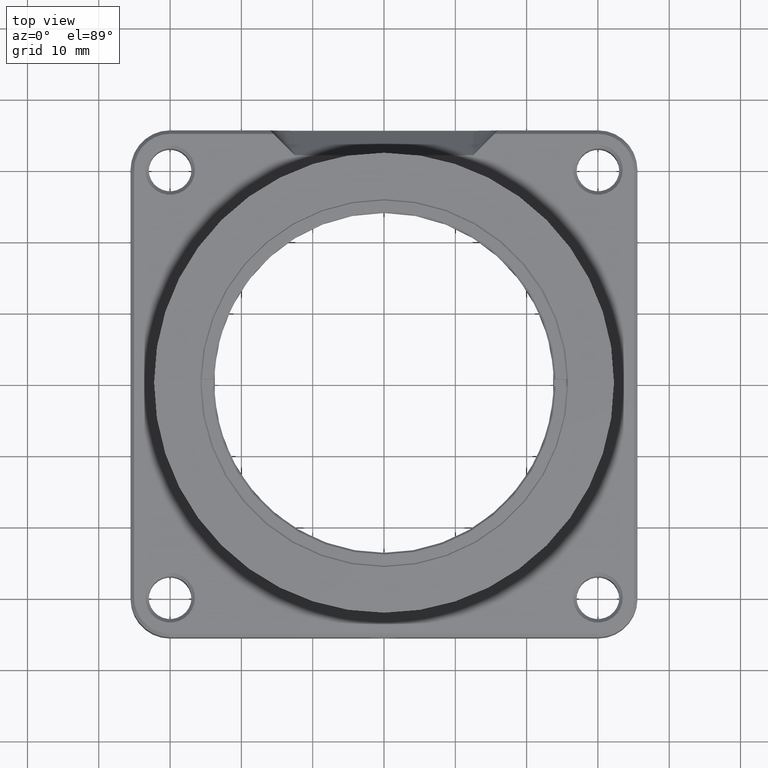
[diagram: clean part render]
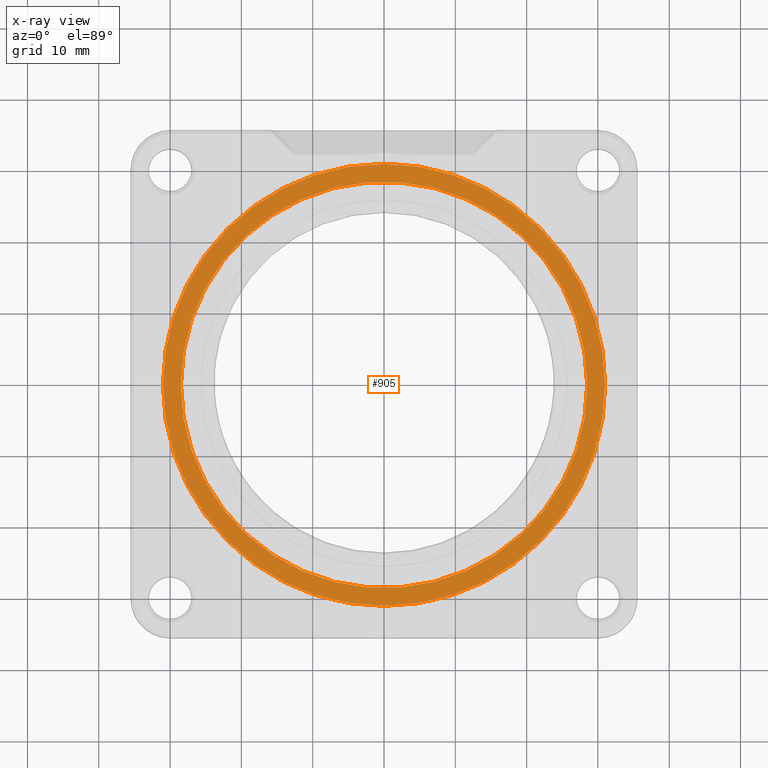
[diagram: x-ray — body ghosted, one internal face saturated and labeled with its STEP entity id]
A machine part, top view, then the same camera in x-ray: the body is ghosted and one INTERNAL B-rep face — a face not visible from any outside direction — is saturated and labeled: STEP entity #905.
In plain terms, the highlighted planar face has unit normal (0, 0, -1).
Its self-contained STEP definition (entity closure, byte-faithful):
#72 = EDGE_CURVE ( 'NONE', #10645, #6431, #878, .T. ) ;
#236 = DIRECTION ( 'NONE',  ( -0.000000000000000000, -0.000000000000000000, 1.000000000000000000 ) ) ;
#441 = PLANE ( 'NONE',  #8760 ) ;
#878 = CIRCLE ( 'NONE', #1752, 28.50000000000000000 ) ;
#905 = ADVANCED_FACE ( 'NONE', ( #1372, #9553 ), #441, .T. ) ;
#1372 = FACE_BOUND ( 'NONE', #13479, .T. ) ;
#1675 = EDGE_CURVE ( 'NONE', #9847, #8914, #8291, .T. ) ;
#1752 = AXIS2_PLACEMENT_3D ( 'NONE', #12360, #236, #3531 ) ;
#2562 = DIRECTION ( 'NONE',  ( -1.000000000000000000, 0.000000000000000000, -0.000000000000000000 ) ) ;
#2798 = DIRECTION ( 'NONE',  ( 0.000000000000000000, 0.000000000000000000, -1.000000000000000000 ) ) ;
#2999 = CARTESIAN_POINT ( 'NONE',  ( -28.50000000000000000, 0.000000000000000000, -3.950000000000000178 ) ) ;
#3162 = ORIENTED_EDGE ( 'NONE', *, *, #5680, .T. ) ;
#3531 = DIRECTION ( 'NONE',  ( -1.000000000000000000, 0.000000000000000000, 0.000000000000000000 ) ) ;
#3534 = AXIS2_PLACEMENT_3D ( 'NONE', #13965, #7507, #6487 ) ;
#4686 = CARTESIAN_POINT ( 'NONE',  ( 31.00000000000000000, 3.796405077356795115E-15, -3.950000000000000178 ) ) ;
#5680 = EDGE_CURVE ( 'NONE', #6431, #10645, #11564, .T. ) ;
#6140 = DIRECTION ( 'NONE',  ( -1.000000000000000000, 0.000000000000000000, 0.000000000000000000 ) ) ;
#6249 = AXIS2_PLACEMENT_3D ( 'NONE', #7110, #2798, #10529 ) ;
#6431 = VERTEX_POINT ( 'NONE', #2999 ) ;
#6487 = DIRECTION ( 'NONE',  ( -1.000000000000000000, 0.000000000000000000, 0.000000000000000000 ) ) ;
#6592 = AXIS2_PLACEMENT_3D ( 'NONE', #7310, #12675, #6140 ) ;
#6832 = ORIENTED_EDGE ( 'NONE', *, *, #1675, .T. ) ;
#6954 = DIRECTION ( 'NONE',  ( 0.000000000000000000, 0.000000000000000000, -1.000000000000000000 ) ) ;
#7110 = CARTESIAN_POINT ( 'NONE',  ( 0.000000000000000000, 0.000000000000000000, -3.950000000000000178 ) ) ;
#7174 = ORIENTED_EDGE ( 'NONE', *, *, #72, .T. ) ;
#7187 = ORIENTED_EDGE ( 'NONE', *, *, #10565, .T. ) ;
#7310 = CARTESIAN_POINT ( 'NONE',  ( 0.000000000000000000, 0.000000000000000000, -3.950000000000000178 ) ) ;
#7507 = DIRECTION ( 'NONE',  ( -0.000000000000000000, -0.000000000000000000, 1.000000000000000000 ) ) ;
#8291 = CIRCLE ( 'NONE', #6249, 31.00000000000000000 ) ;
#8760 = AXIS2_PLACEMENT_3D ( 'NONE', #13480, #6954, #2562 ) ;
#8914 = VERTEX_POINT ( 'NONE', #13960 ) ;
#9553 = FACE_OUTER_BOUND ( 'NONE', #9685, .T. ) ;
#9685 = EDGE_LOOP ( 'NONE', ( #7187, #6832 ) ) ;
#9847 = VERTEX_POINT ( 'NONE', #4686 ) ;
#10529 = DIRECTION ( 'NONE',  ( -1.000000000000000000, 0.000000000000000000, 0.000000000000000000 ) ) ;
#10565 = EDGE_CURVE ( 'NONE', #8914, #9847, #13052, .T. ) ;
#10645 = VERTEX_POINT ( 'NONE', #12918 ) ;
#11564 = CIRCLE ( 'NONE', #3534, 28.50000000000000000 ) ;
#12360 = CARTESIAN_POINT ( 'NONE',  ( 0.000000000000000000, 0.000000000000000000, -3.950000000000000178 ) ) ;
#12675 = DIRECTION ( 'NONE',  ( 0.000000000000000000, 0.000000000000000000, -1.000000000000000000 ) ) ;
#12918 = CARTESIAN_POINT ( 'NONE',  ( 28.50000000000000000, 3.490243377569956456E-15, -3.950000000000000178 ) ) ;
#13052 = CIRCLE ( 'NONE', #6592, 31.00000000000000000 ) ;
#13479 = EDGE_LOOP ( 'NONE', ( #3162, #7174 ) ) ;
#13480 = CARTESIAN_POINT ( 'NONE',  ( 0.000000000000000000, 0.000000000000000000, -3.950000000000000178 ) ) ;
#13960 = CARTESIAN_POINT ( 'NONE',  ( -31.00000000000000000, 0.000000000000000000, -3.950000000000000178 ) ) ;
#13965 = CARTESIAN_POINT ( 'NONE',  ( 0.000000000000000000, 0.000000000000000000, -3.950000000000000178 ) ) ;